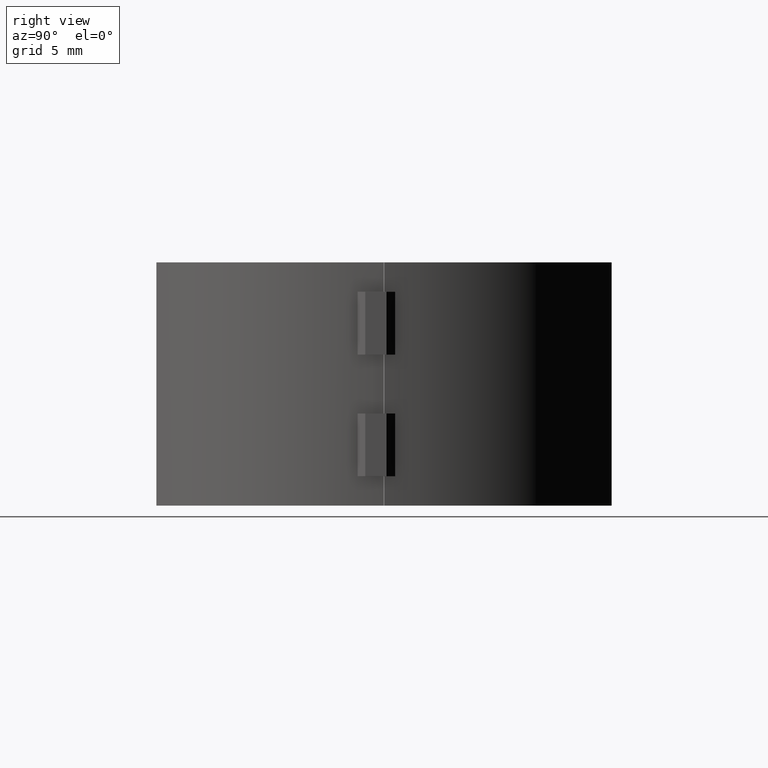
[diagram: clean part render]
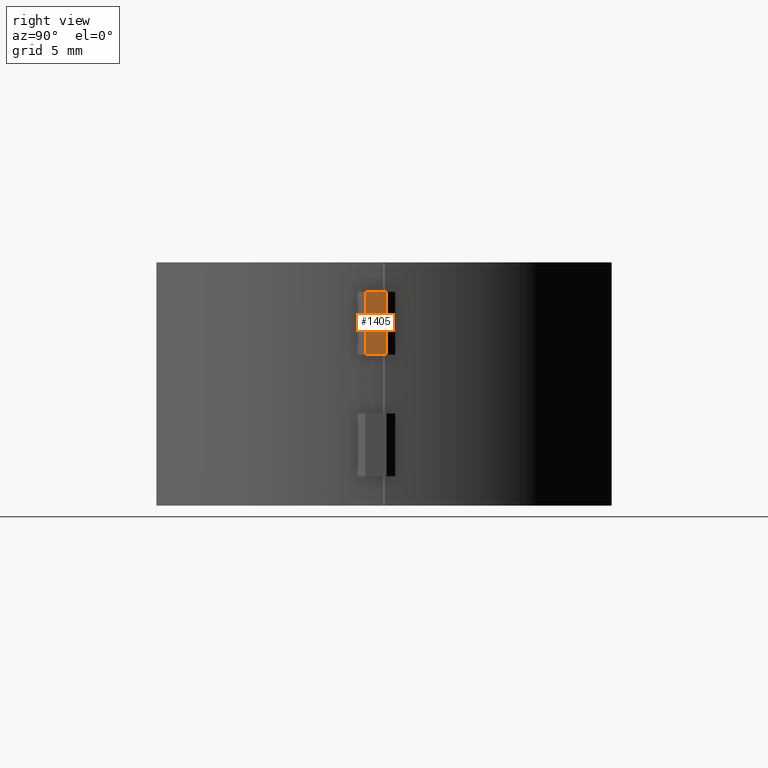
[diagram: same view with one face highlighted and labeled with its STEP entity id]
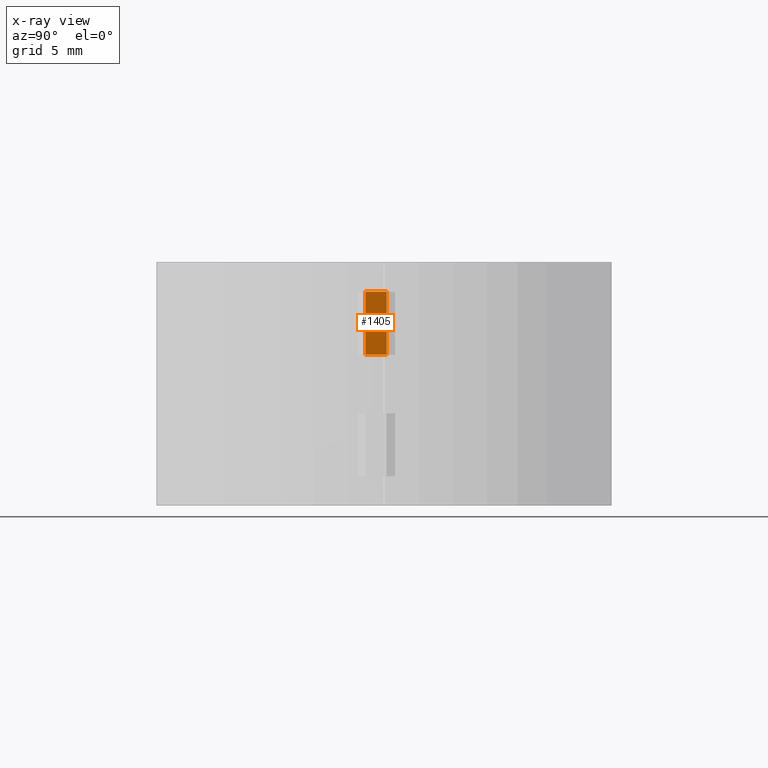
[diagram: x-ray of the same camera — body ghosted, the highlighted face saturated]
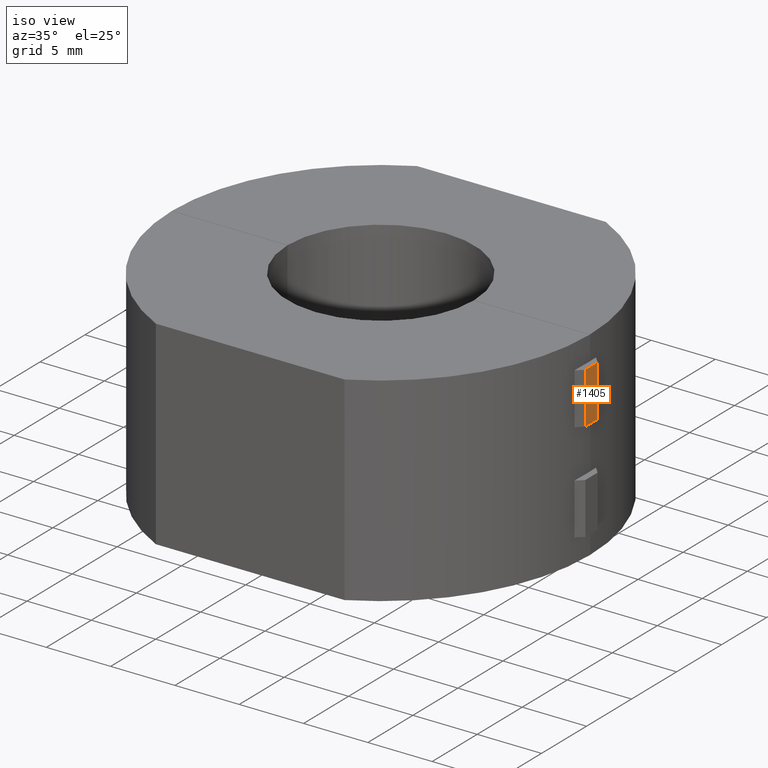
[diagram: same view with one face highlighted and labeled with its STEP entity id]
A machine part, right view. The second image highlights one B-rep face of the part: STEP entity #1405.
The next image is the same camera in x-ray: the body ghosted, the highlighted face saturated — about 0% of this face is hidden behind the body in this view.
A second angle (iso view) of the same face is appended — the face is thin or edge-on in the first view.
In plain terms, the highlighted planar face has unit normal (1, 0, -0).
Its self-contained STEP definition (entity closure, byte-faithful):
#181 = VECTOR ( 'NONE', #923, 1000.000000000000000 ) ;
#216 = AXIS2_PLACEMENT_3D ( 'NONE', #2467, #1238, #1964 ) ;
#279 = CARTESIAN_POINT ( 'NONE',  ( 16.75000000000000400, 0.1599999999999999800, 1.875000000000000000 ) ) ;
#297 = FACE_OUTER_BOUND ( 'NONE', #1902, .T. ) ;
#343 = CARTESIAN_POINT ( 'NONE',  ( 16.75000000000000400, -1.196804718107219000, 5.875000000000000000 ) ) ;
#416 = ORIENTED_EDGE ( 'NONE', *, *, #3105, .T. ) ;
#626 = EDGE_CURVE ( 'NONE', #2718, #3026, #2851, .T. ) ;
#685 = CARTESIAN_POINT ( 'NONE',  ( 16.75000000000000400, 0.1599999999999999800, 5.875000000000000000 ) ) ;
#739 = EDGE_CURVE ( 'NONE', #2718, #1509, #2489, .T. ) ;
#750 = LINE ( 'NONE', #685, #181 ) ;
#856 = ORIENTED_EDGE ( 'NONE', *, *, #2154, .F. ) ;
#923 = DIRECTION ( 'NONE',  ( -0.0000000000000000000, 1.000000000000000000, -0.0000000000000000000 ) ) ;
#965 = VECTOR ( 'NONE', #1211, 1000.000000000000000 ) ;
#1211 = DIRECTION ( 'NONE',  ( 0.0000000000000000000, 0.0000000000000000000, 1.000000000000000000 ) ) ;
#1238 = DIRECTION ( 'NONE',  ( 1.000000000000000000, 0.0000000000000000000, -0.0000000000000000000 ) ) ;
#1275 = DIRECTION ( 'NONE',  ( 0.0000000000000000000, 0.0000000000000000000, 1.000000000000000000 ) ) ;
#1405 = ADVANCED_FACE ( 'NONE', ( #297 ), #1718, .T. ) ;
#1406 = CARTESIAN_POINT ( 'NONE',  ( 16.75000000000000400, 0.1599999999999999800, 1.875000000000000000 ) ) ;
#1509 = VERTEX_POINT ( 'NONE', #343 ) ;
#1718 = PLANE ( 'NONE',  #216 ) ;
#1902 = EDGE_LOOP ( 'NONE', ( #416, #856, #3136, #2277 ) ) ;
#1964 = DIRECTION ( 'NONE',  ( -0.0000000000000000000, 0.0000000000000000000, -1.000000000000000000 ) ) ;
#1987 = CARTESIAN_POINT ( 'NONE',  ( 16.75000000000000400, 0.1599999999999999800, 1.875000000000000000 ) ) ;
#2012 = CARTESIAN_POINT ( 'NONE',  ( 16.75000000000000400, -1.196804718107219000, 1.875000000000000000 ) ) ;
#2154 = EDGE_CURVE ( 'NONE', #1509, #2350, #750, .T. ) ;
#2277 = ORIENTED_EDGE ( 'NONE', *, *, #626, .T. ) ;
#2350 = VERTEX_POINT ( 'NONE', #2480 ) ;
#2467 = CARTESIAN_POINT ( 'NONE',  ( 16.75000000000000400, 0.1599999999999999800, 1.875000000000000000 ) ) ;
#2480 = CARTESIAN_POINT ( 'NONE',  ( 16.75000000000000400, 0.1599999999999999800, 5.875000000000000000 ) ) ;
#2489 = LINE ( 'NONE', #2012, #3019 ) ;
#2610 = LINE ( 'NONE', #279, #965 ) ;
#2718 = VERTEX_POINT ( 'NONE', #2785 ) ;
#2738 = VECTOR ( 'NONE', #2937, 1000.000000000000000 ) ;
#2785 = CARTESIAN_POINT ( 'NONE',  ( 16.75000000000000400, -1.196804718107219000, 1.875000000000000000 ) ) ;
#2851 = LINE ( 'NONE', #1987, #2738 ) ;
#2937 = DIRECTION ( 'NONE',  ( -0.0000000000000000000, 1.000000000000000000, -0.0000000000000000000 ) ) ;
#3019 = VECTOR ( 'NONE', #1275, 1000.000000000000000 ) ;
#3026 = VERTEX_POINT ( 'NONE', #1406 ) ;
#3105 = EDGE_CURVE ( 'NONE', #3026, #2350, #2610, .T. ) ;
#3136 = ORIENTED_EDGE ( 'NONE', *, *, #739, .F. ) ;